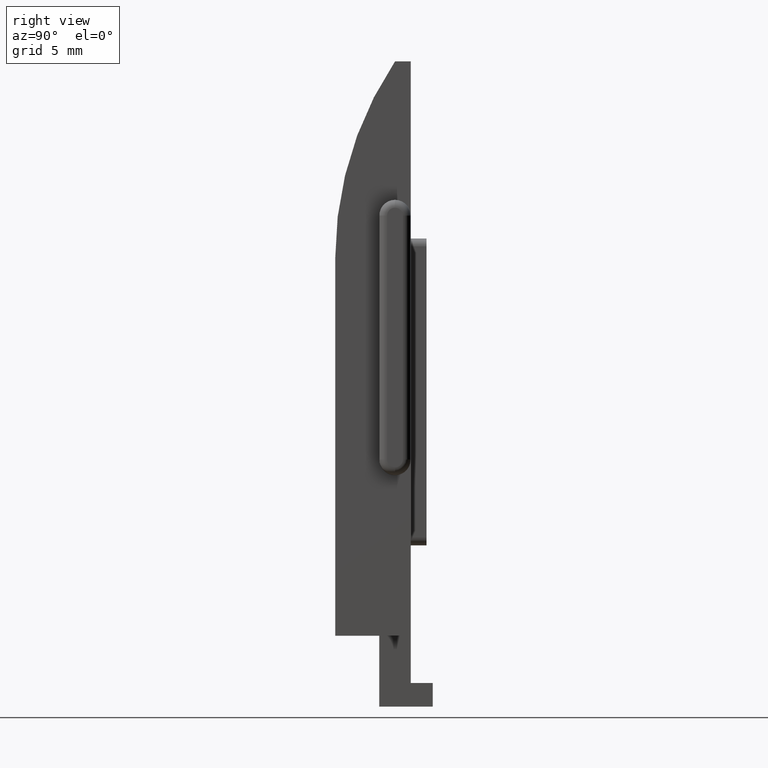
[diagram: clean part render]
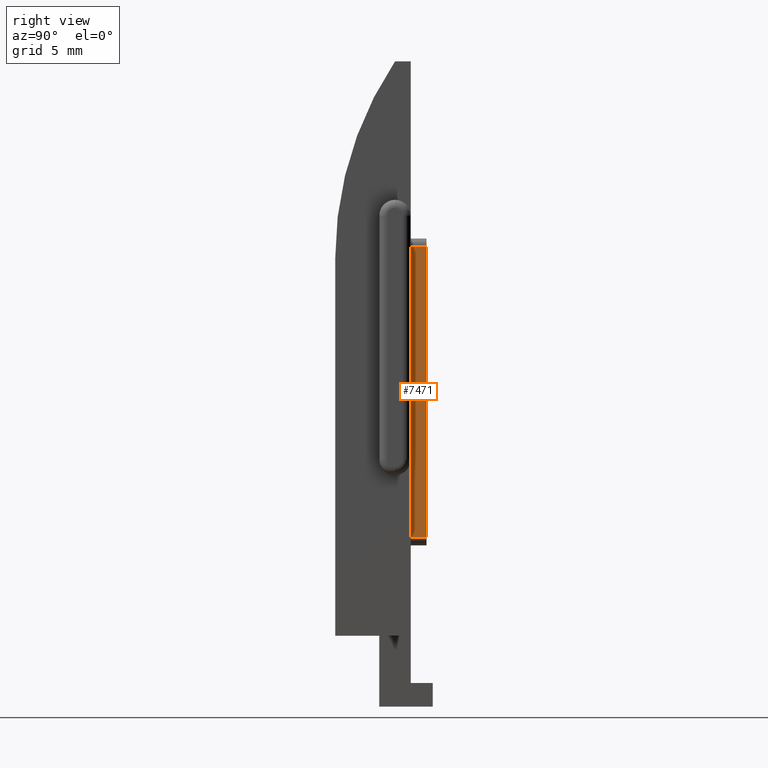
[diagram: same view with one face highlighted and labeled with its STEP entity id]
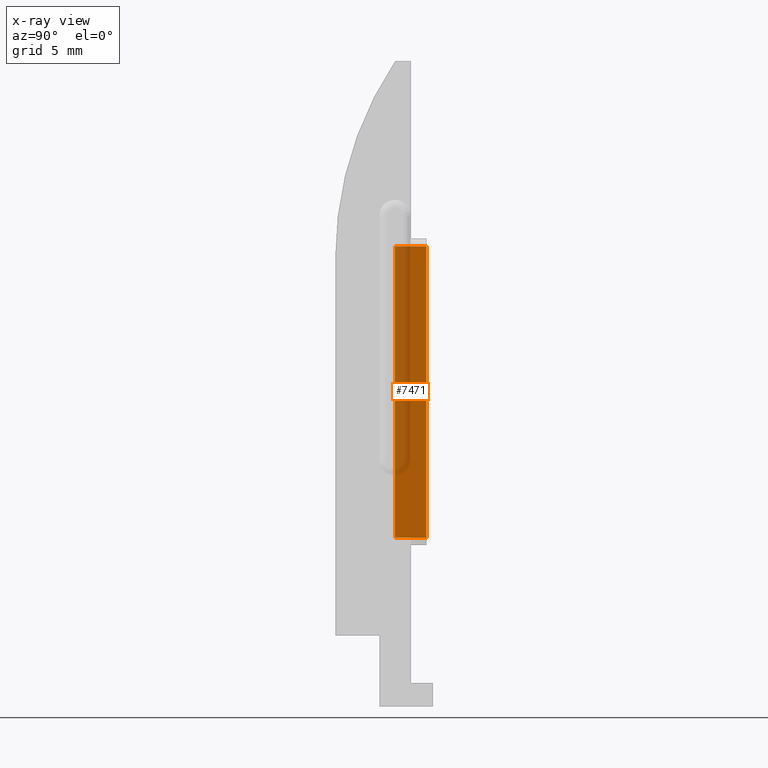
[diagram: x-ray of the same camera — body ghosted, the highlighted face saturated]
A machine part, right view. The second image highlights one B-rep face of the part: STEP entity #7471.
The next image is the same camera in x-ray: the body ghosted, the highlighted face saturated — about 39% of this face is hidden behind the body in this view.
In plain terms, the highlighted planar face has unit normal (-1, 0, 0).
Its self-contained STEP definition (entity closure, byte-faithful):
#332 = VECTOR ( 'NONE', #937, 1000.000000000000000 ) ;
#492 = EDGE_CURVE ( 'NONE', #8392, #2623, #10461, .T. ) ;
#937 = DIRECTION ( 'NONE',  ( -0.0000000000000000000, -1.000000000000000000, -0.0000000000000000000 ) ) ;
#1420 = CARTESIAN_POINT ( 'NONE',  ( 4.749999999999997300, -1.000000000000000000, -9.249999999999998200 ) ) ;
#1492 = VECTOR ( 'NONE', #5583, 1000.000000000000000 ) ;
#1862 = ORIENTED_EDGE ( 'NONE', *, *, #9054, .F. ) ;
#2475 = EDGE_CURVE ( 'NONE', #7045, #8392, #3655, .T. ) ;
#2503 = FACE_OUTER_BOUND ( 'NONE', #8031, .T. ) ;
#2623 = VERTEX_POINT ( 'NONE', #1420 ) ;
#2732 = ORIENTED_EDGE ( 'NONE', *, *, #8476, .F. ) ;
#2873 = ORIENTED_EDGE ( 'NONE', *, *, #492, .T. ) ;
#3126 = CARTESIAN_POINT ( 'NONE',  ( 4.749999999999999100, 1.000000000000000000, 9.249999999999994700 ) ) ;
#3248 = LINE ( 'NONE', #9957, #332 ) ;
#3451 = CARTESIAN_POINT ( 'NONE',  ( 4.749999999999999100, -1.000000000000000000, 9.249999999999994700 ) ) ;
#3655 = LINE ( 'NONE', #3126, #1492 ) ;
#4072 = DIRECTION ( 'NONE',  ( -1.000000000000000000, 0.0000000000000000000, 9.376883653928691100E-017 ) ) ;
#4464 = VECTOR ( 'NONE', #5830, 1000.000000000000000 ) ;
#4942 = PLANE ( 'NONE',  #7960 ) ;
#5029 = CARTESIAN_POINT ( 'NONE',  ( 4.749999999999997300, -1.000000000000000000, -9.249999999999998200 ) ) ;
#5097 = CARTESIAN_POINT ( 'NONE',  ( 4.749999999999997300, 1.000000000000000000, -9.249999999999998200 ) ) ;
#5518 = VECTOR ( 'NONE', #9750, 1000.000000000000000 ) ;
#5519 = ORIENTED_EDGE ( 'NONE', *, *, #2475, .T. ) ;
#5583 = DIRECTION ( 'NONE',  ( -0.0000000000000000000, -1.000000000000000000, -0.0000000000000000000 ) ) ;
#5630 = CARTESIAN_POINT ( 'NONE',  ( 4.749999999999997300, 1.000000000000000000, -9.249999999999998200 ) ) ;
#5830 = DIRECTION ( 'NONE',  ( -9.376883653928691100E-017, -0.0000000000000000000, -1.000000000000000000 ) ) ;
#7045 = VERTEX_POINT ( 'NONE', #7485 ) ;
#7315 = VERTEX_POINT ( 'NONE', #5097 ) ;
#7471 = ADVANCED_FACE ( 'NONE', ( #2503 ), #4942, .F. ) ;
#7485 = CARTESIAN_POINT ( 'NONE',  ( 4.749999999999999100, 1.000000000000000000, 9.249999999999994700 ) ) ;
#7489 = CARTESIAN_POINT ( 'NONE',  ( 4.749999999999997300, 1.000000000000000000, -9.249999999999998200 ) ) ;
#7960 = AXIS2_PLACEMENT_3D ( 'NONE', #7489, #4072, #9101 ) ;
#8031 = EDGE_LOOP ( 'NONE', ( #2873, #2732, #1862, #5519 ) ) ;
#8392 = VERTEX_POINT ( 'NONE', #3451 ) ;
#8476 = EDGE_CURVE ( 'NONE', #7315, #2623, #3248, .T. ) ;
#9054 = EDGE_CURVE ( 'NONE', #7045, #7315, #10136, .T. ) ;
#9101 = DIRECTION ( 'NONE',  ( 9.376883653928691100E-017, 0.0000000000000000000, 1.000000000000000000 ) ) ;
#9750 = DIRECTION ( 'NONE',  ( -9.376883653928691100E-017, -0.0000000000000000000, -1.000000000000000000 ) ) ;
#9957 = CARTESIAN_POINT ( 'NONE',  ( 4.749999999999997300, 1.000000000000000000, -9.249999999999998200 ) ) ;
#10136 = LINE ( 'NONE', #5630, #5518 ) ;
#10461 = LINE ( 'NONE', #5029, #4464 ) ;